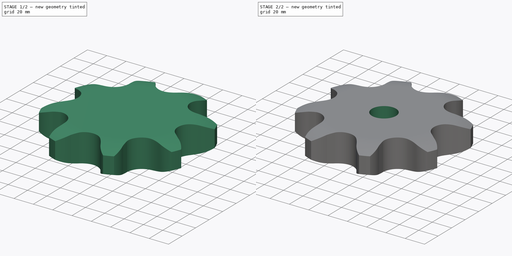
[diagram: build sequence overview — one tinted view per stage of 2, left to right]
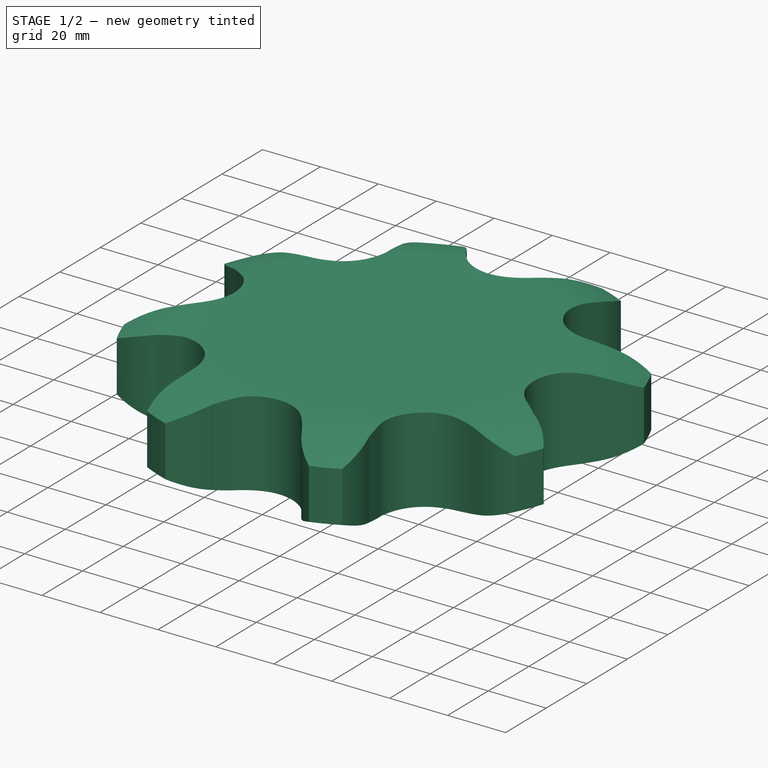
[diagram: stage 1 of 2 — iso view after this stage's code; geometry added in this stage tinted green]
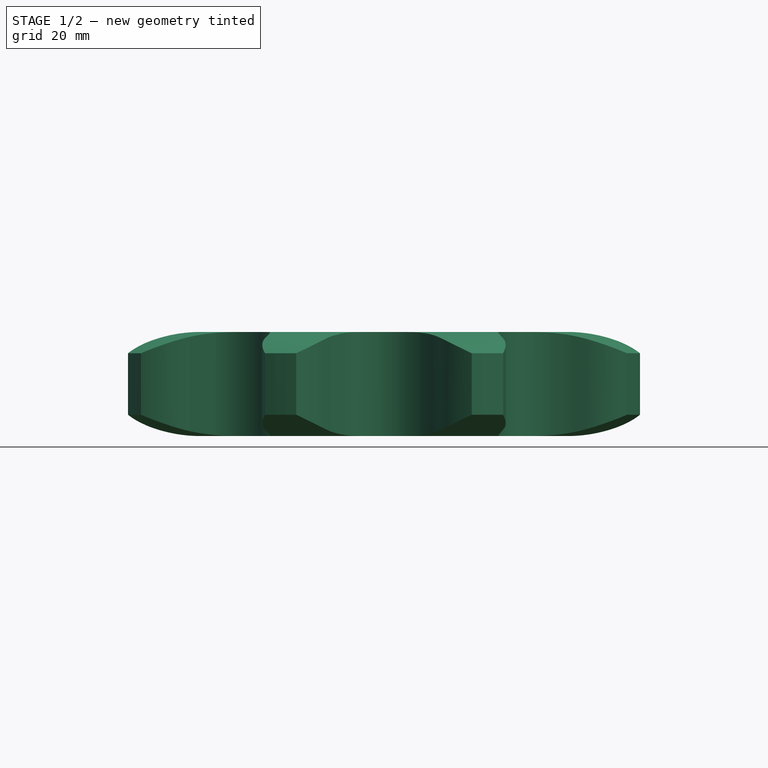
[diagram: stage 1 of 2 — front view after this stage's code; geometry added in this stage tinted green]
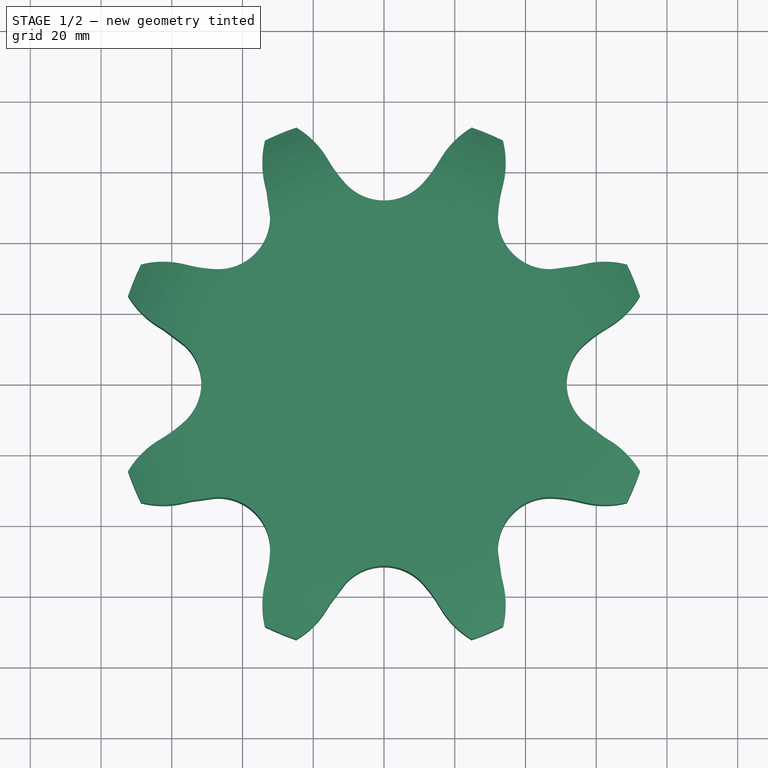
[diagram: stage 1 of 2 — top view after this stage's code; geometry added in this stage tinted green]
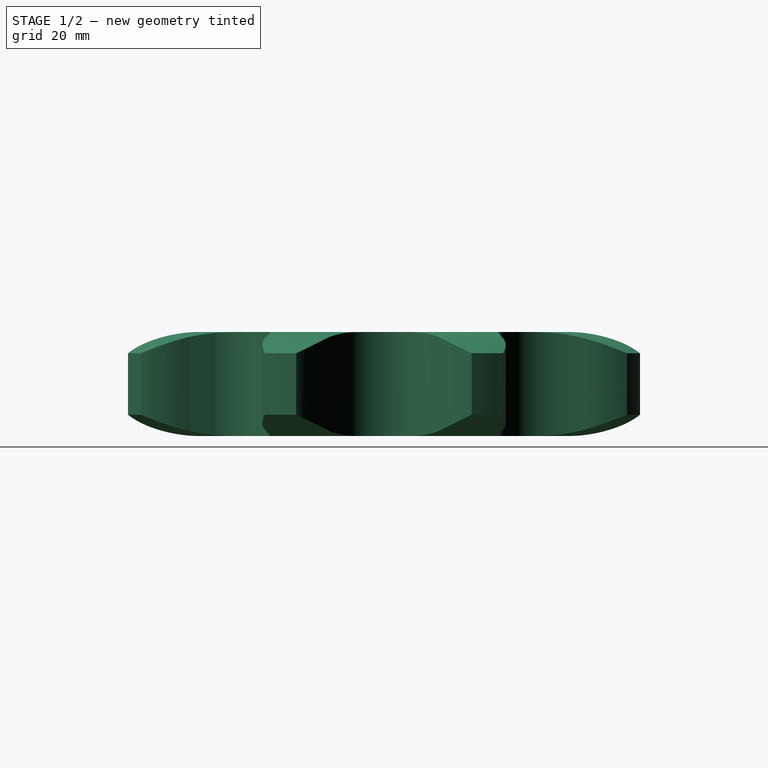
[diagram: stage 1 of 2 — right view after this stage's code; geometry added in this stage tinted green]
FCSTD DOCUMENT  (FreeCAD 0.20R29177 +233 (Git))
Label: Plate Wheel simplex 2 x 1 ¼
License: Attribution 4.0 International (CC BY 4.0)
LicenseURL: http://creativecommons.org/licenses/by/4.0/
objects: Sketcher::SketchObject×2, Spreadsheet::Sheet×1, Part::Part2DObjectPython×1, PartDesign::Pad×1, PartDesign::Groove×1, PartDesign::Pocket×1, PartDesign::Body×1
note: 10 computed .brp shape members not serialized (recipe doc carries the construction recipe); baked Part::Feature solids carry a one-line shape summary decoded from their .brp

FEATURE [Spreadsheet::Sheet] Spreadsheet  label="Data"
  TeehNumber = 0
  cells = A1=Teeth Number; B1=P (Pitch); C1=Wc (Chain width); D1=Dr (Roller diameter); E1=Tr (Tooth radius); F1=Rw (Radius width); G1=Wt (Tooth width); H1=z (Number of teeth); I1=De (External Diameter); J1=Dp (pitch diameter); K1=D (Hole diameter); L1=H (Total height); A2==hiddenref(.TeehNumber.String); B2(P)==.B3; C2(Wc)==.C3; D2(Dr)==.D3; E2(Tr)==.E3; F2(Rw)==.F3; G2(Wt)==.G3; H2(z)==.H3; I2(De)==.I3; J2(Dp)==.J3; K2(D)==.K3; L2(H)==.L3; A3=Z 8; B3=50.8; C3=30.99; D3=29.21; E3=51; F3=6; G3=29.4; H3=8; I3=153; J3=132.69; K3=25; L3=29.4; A4=Z 9; B4=50.8; C4=30.99; D4=29.21; E4=51; F4=6; G4=29.4; H4=9; I4=169; J4=148.54; K4=25; L4=29.4; A5=Z 10; B5=50.8; C5=30.99; D5=29.21; E5=51; F5=6; G5=29.4; H5=10; I5=185; J5=164.44; K5=25; L5=29.4; A6=Z 11; B6=50.8; C6=30.99; D6=29.21; E6=51; F6=6; G6=29.4; H6=11; I6=200.8; J6=180.34; K6=30; L6=29.4; A7=Z 12; B7=50.8; C7=30.99; D7=29.21; E7=51; F7=6; G7=29.4; H7=12; I7=216.8; J7=196.29; K7=30; L7=29.4; A8=Z 13; B8=50.8; C8=30.99; D8=29.21; E8=51; F8=6; G8=29.4; H8=13; I8=232.8; J8=212.29; K8=30; L8=29.4; A9=Z 14; B9=50.8; C9=30.99; D9=29.21; E9=51; F9=6; G9=29.4; H9=14; I9=248.8; J9=228.29; K9=30; L9=29.4; A10=Z 15; B10=50.8; C10=30.99; D10=29.21; E10=51; F10=6; G10=29.4; H10=15; I10=264.8; J10=244.3; K10=30; L10=29.4; A11=Z 16; B11=50.8; C11=30.99; D11=29.21; E11=51; F11=6; G11=29.4; H11=16; I11=280.9; J11=260.4; K11=30; L11=29.4; A12=Z 17; B12=50.8; C12=30.99; D12=29.21; E12=51; F12=6; G12=29.4; H12=17; I12=296.9; J12=276.4; K12=30; L12=29.4; A13=Z 18; B13=50.8; C13=30.99; D13=29.21; E13=51; F13=6; G13=29.4; H13=18; I13=313; J13=292.55; K13=30; L13=29.4; A14=Z 19; B14=50.8; C14=30.99; D14=29.21; E14=51; F14=6; G14=29.4; H14=19; I14=329.1; J14=308.66; K14=30; L14=29.4; A15=Z 20; B15=50.8; C15=30.99; D15=29.21; E15=51; F15=6; G15=29.4; H15=20; I15=345.2; J15=324.71; K15=30; L15=29.4; A16=Z 21; B16=50.8; C16=30.99; D16=29.21; E16=51; F16=6; G16=29.4; H16=21; I16=361.3; J16=340.82; K16=30; L16=29.4; A17=Z 22; B17=50.8; C17=30.99; D17=29.21; E17=51; F17=6; G17=29.4; H17=22; +100 more cells
  expr: .TeehNumber.Enum = cells[<<A3:|>>]
  expr: .cells.Bind.B2.ZZ2 = tuple(.cells; <<B>> + str(hiddenref(TeehNumber) + 3); <<ZZ>> + str(hiddenref(TeehNumber) + 3))
FEATURE [Part::Part2DObjectPython] Sprocket  label="Teeth sketch"  # Draft 2D object (typed FeaturePython)
  ANSISize = 160
  NumberOfTeeth = 8
  Pitch = 50.8
  RollerDiameter = 29.21
  expr: NumberOfTeeth = <<Data>>.z
  expr: Pitch = <<Data>>.P
  expr: RollerDiameter = <<Data>>.Dr
FEATURE [PartDesign::Pad] Pad  label="Teeth"
  Direction = (0,0,1)
  Length = 29.4
  Length2 = 100
  Profile = -> Sprocket
  Type = 0
  expr: Length = <<Data>>.Wt
FEATURE [Sketcher::SketchObject] Sketch  label="Radius"
  FullyConstrained = true
  MapMode = 5
  Placement = pos=(0,0,0) rot=(1,0,0;1.5708rad)
  Support = -> [XZ_Plane]
  expr: .Constraints.Re = <<Data>>.De / 2
  expr: .Constraints.Rw = <<Data>>.Rw
  expr: .Constraints.Tr = <<Data>>.Tr
  expr: .Constraints.Wt = <<Data>>.Wt
  sketch-geometry (15):
    g0: LineSegment StartX=86.5 StartY=29.4 StartZ=0 EndX=52.5 EndY=29.4 EndZ=0
    g1: LineSegment StartX=86.5 StartY=29.4 StartZ=0 EndX=86.5 EndY=0 EndZ=0
    g2: LineSegment StartX=86.5 StartY=0 StartZ=0 EndX=52.5 EndY=0 EndZ=0
    g3: ArcOfCircle CenterX=52.5 CenterY=-21.6 CenterZ=0 NormalX=0 NormalY=0 NormalZ=1 AngleXU=0 Radius=51 StartAngle=1.08084 EndAngle=1.5708
    g4: LineSegment StartX=76.5 StartY=23.4 StartZ=0 EndX=76.5 EndY=6 EndZ=0
    g5: ArcOfCircle CenterX=52.5 CenterY=51 CenterZ=0 NormalX=0 NormalY=0 NormalZ=1 AngleXU=0 Radius=51 StartAngle=4.71239 EndAngle=5.20235
    g6: LineSegment StartX=52.5 StartY=29.4 StartZ=0 EndX=52.5 EndY=0 EndZ=0
    g7: LineSegment StartX=86.5 StartY=29.4 StartZ=0 EndX=86.5 EndY=30.4 EndZ=0
    g8: LineSegment StartX=86.5 StartY=30.4 StartZ=0 EndX=52.5 EndY=30.4 EndZ=0
    g9: LineSegment StartX=52.5 StartY=30.4 StartZ=0 EndX=52.5 EndY=29.4 EndZ=0
    g10: LineSegment StartX=86.5 StartY=0 StartZ=0 EndX=86.5 EndY=-1 EndZ=0
    g11: LineSegment StartX=86.5 StartY=-1 StartZ=0 EndX=52.5 EndY=-1 EndZ=0
    g12: LineSegment StartX=52.5 StartY=-1 StartZ=0 EndX=52.5 EndY=0 EndZ=0
    g13: LineSegment StartX=76.5 StartY=23.4 StartZ=0 EndX=76.5 EndY=29.4 EndZ=0
    g14: LineSegment StartX=76.5 StartY=6 StartZ=0 EndX=76.5 EndY=0 EndZ=0
  constraints (43):
    c: Horizontal(g0)
    c: Coincident(g1,g0)
    c: PointOnObject(g1,g-1)
    c: Vertical(g1)
    c: Coincident(g2,g1)
    c: PointOnObject(g2,g-1)
    c: Coincident(g4,g3)
    c: Vertical(g4)
    c: Coincident(g5,g2)
    c: Coincident(g5,g4)
    c: DistanceY(g1,g1) = 29.4  'Wt'
    c: DistanceX(g4) = 76.5  'Re'
    c: Coincident(g6,g5)
    c: Vertical(g6)
    c: Coincident(g1,g7)
    c: Vertical(g7)
    c: Coincident(g7,g8)
    c: Horizontal(g8)
    c: Coincident(g8,g9)
    c: Vertical(g9)
    c: Coincident(g1,g10)
    c: Vertical(g10)
    c: Coincident(g10,g11)
    c: Horizontal(g11)
    c: Coincident(g11,g12)
    c: Coincident(g12,g5)
    c: Vertical(g12)
    c: DistanceY(g7,g7) = 1
    c: DistanceY(g10,g10) = 1
    c: Radius(g5) = 51  'Tr'
    c: Equal(g5,g3)
    c: DistanceY(g5,g4) = 6  'Rw'
    c: Coincident(g13,g3)
    c: PointOnObject(g13,g0)
    c: Vertical(g13)
    c: Coincident(g14,g4)
    c: PointOnObject(g14,g2)
    c: Vertical(g14)
    c: Equal(g13,g14)
    c: Tangent(g3,g0) = -1.5708
    c: Coincident(g3,g9)
    c: Coincident(g6,g3)
    c: DistanceX(g13,g1) = 10
FEATURE [PartDesign::Groove] Groove  label="Teeth Radius"
  Angle = 360
  Axis = (-3e-16,3e-16,1)
  Base = (0,0,0)
  BaseFeature = -> Pad
  Profile = -> Sketch
  ReferenceAxis = -> Z_Axis
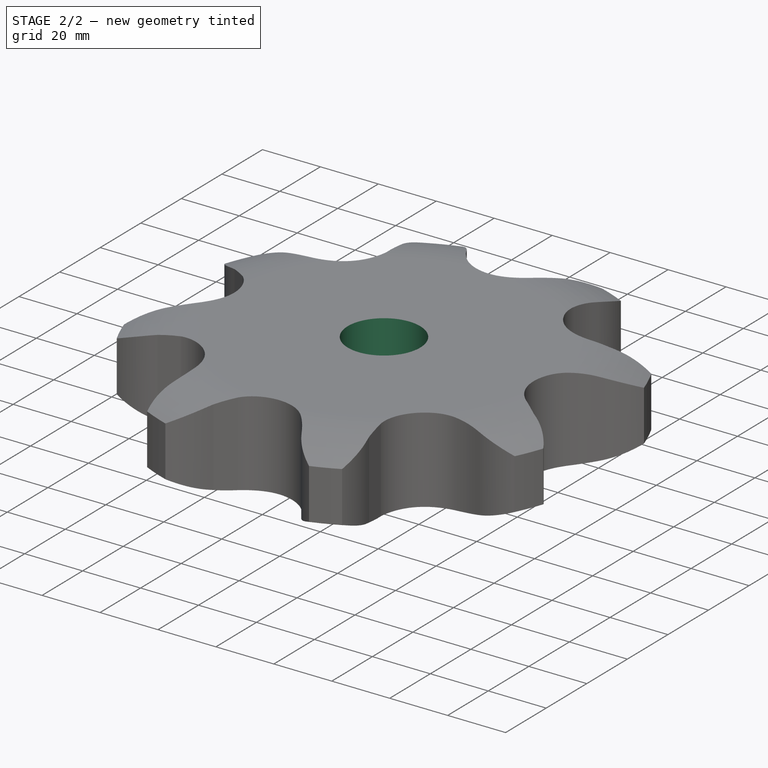
[diagram: stage 2 of 2 — iso view after this stage's code; geometry added in this stage tinted green]
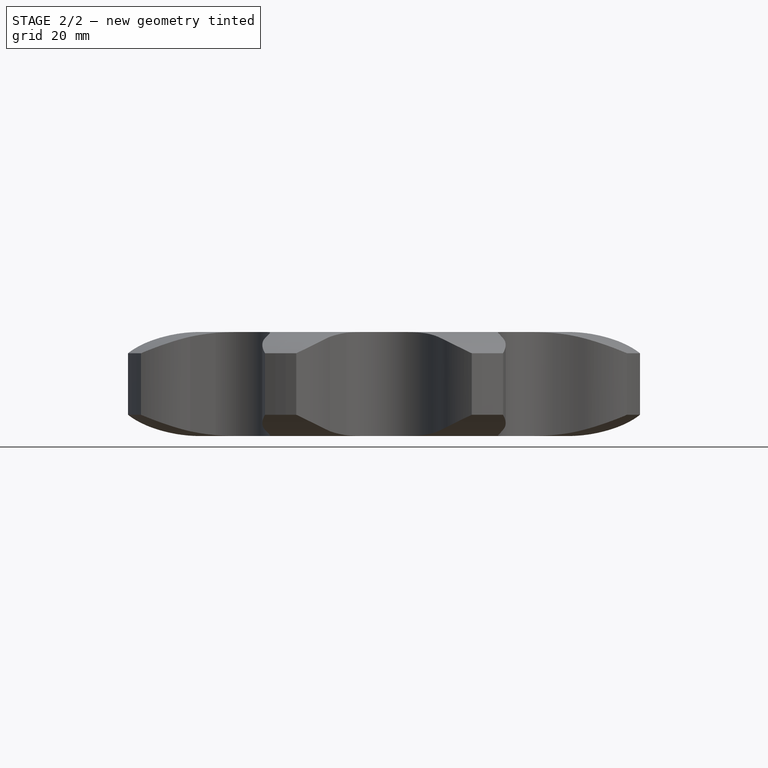
[diagram: stage 2 of 2 — front view after this stage's code; geometry added in this stage tinted green]
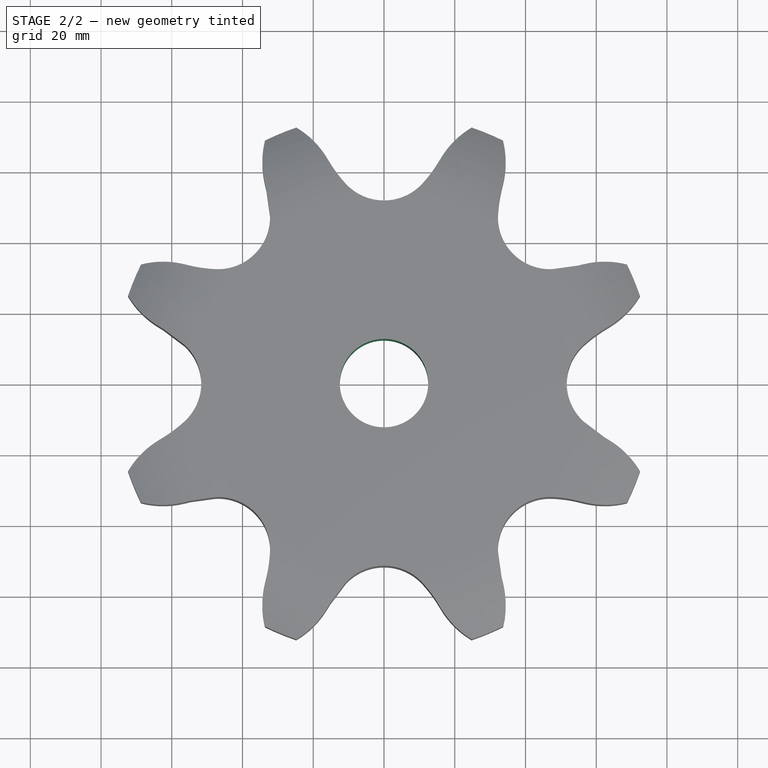
[diagram: stage 2 of 2 — top view after this stage's code; geometry added in this stage tinted green]
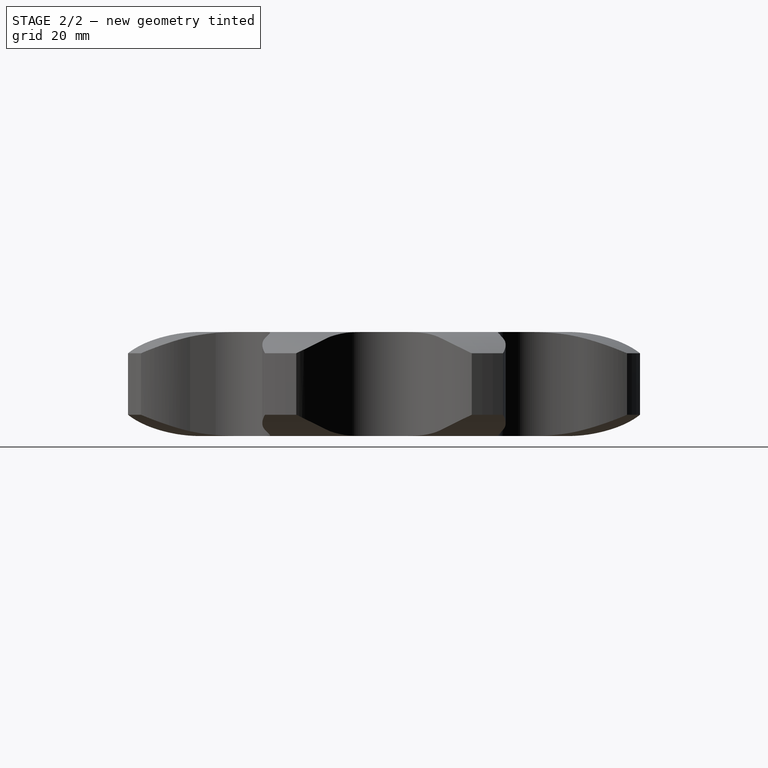
[diagram: stage 2 of 2 — right view after this stage's code; geometry added in this stage tinted green]
FEATURE [Sketcher::SketchObject] Sketch001  label="Hole Sketch"
  FullyConstrained = true
  MapMode = 5
  Support = -> [XY_Plane]
  expr: .Constraints.D = <<Data>>.D
  sketch-geometry (1):
    g0: Circle CenterX=0 CenterY=0 CenterZ=0 NormalX=0 NormalY=0 NormalZ=1 AngleXU=0 Radius=12.5
  constraints (2):
    c: Coincident(g0,g-1)
    c: Diameter(g0) = 25  'D'
FEATURE [PartDesign::Pocket] Pocket  label="Hole"
  BaseFeature = -> Groove
  Direction = (0,0,-1)
  Length = 5
  Length2 = 5
  Midplane = true
  Profile = -> Sketch001
  ReferenceAxis = -> Sketch001 [N_Axis]
  Type = 1
FEATURE [PartDesign::Body] Body  label="Plate Wheel simplex 2 x 1 ¼ z8"
  Group = -> [Sprocket,Pad,Sketch,Groove,Sketch001,Pocket]
  Origin = -> Origin
  Tip = -> Pocket
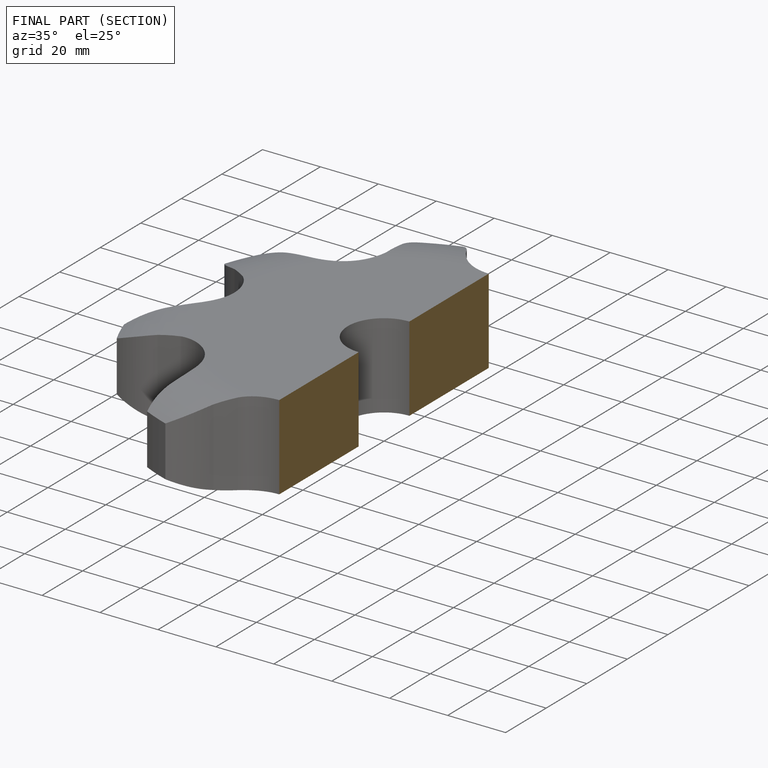
[diagram: finished part — half-section view (interior)]
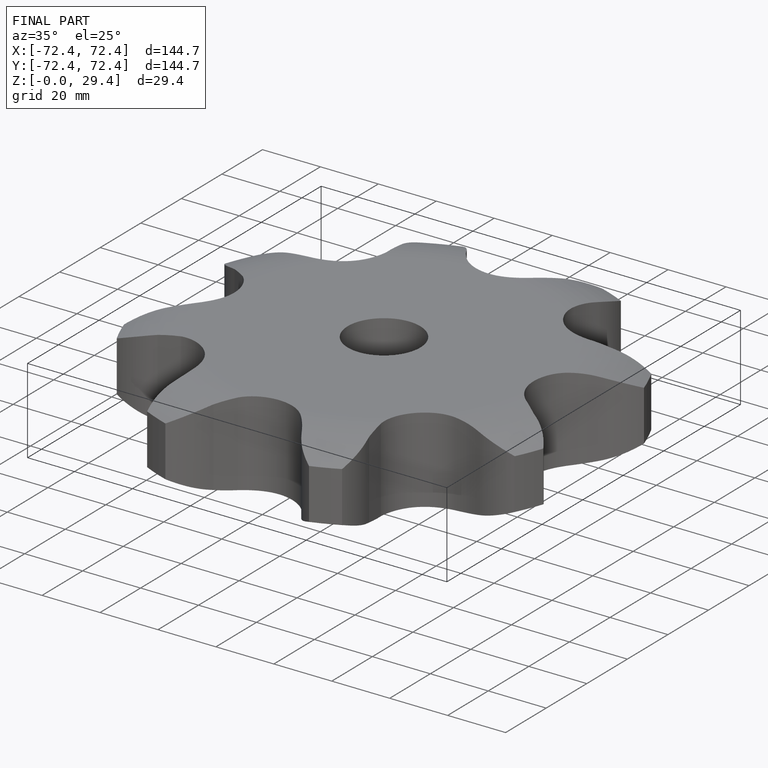
[diagram: finished part — iso view with bounding-box wireframe]
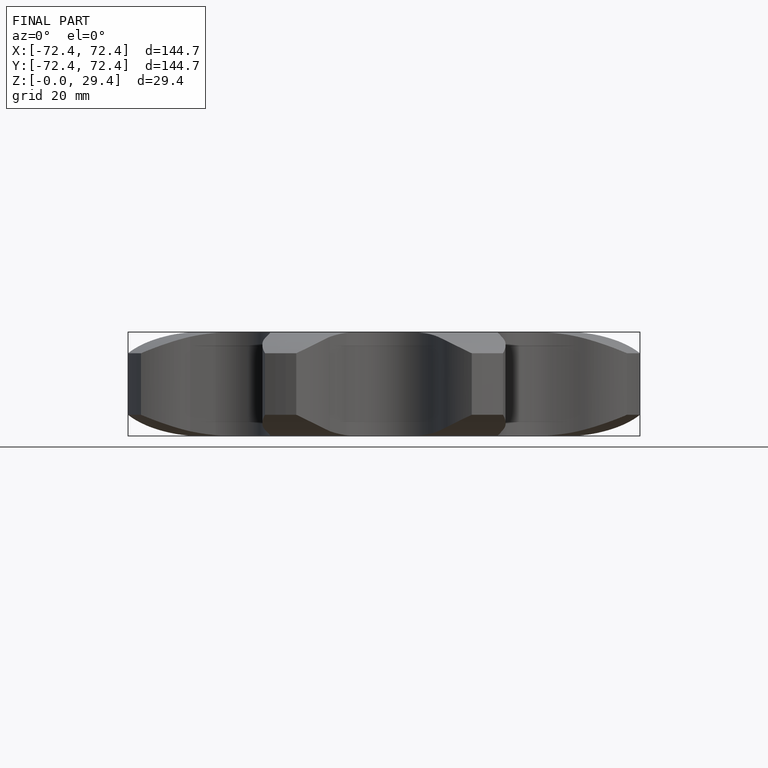
[diagram: finished part — front view with bounding-box wireframe]
